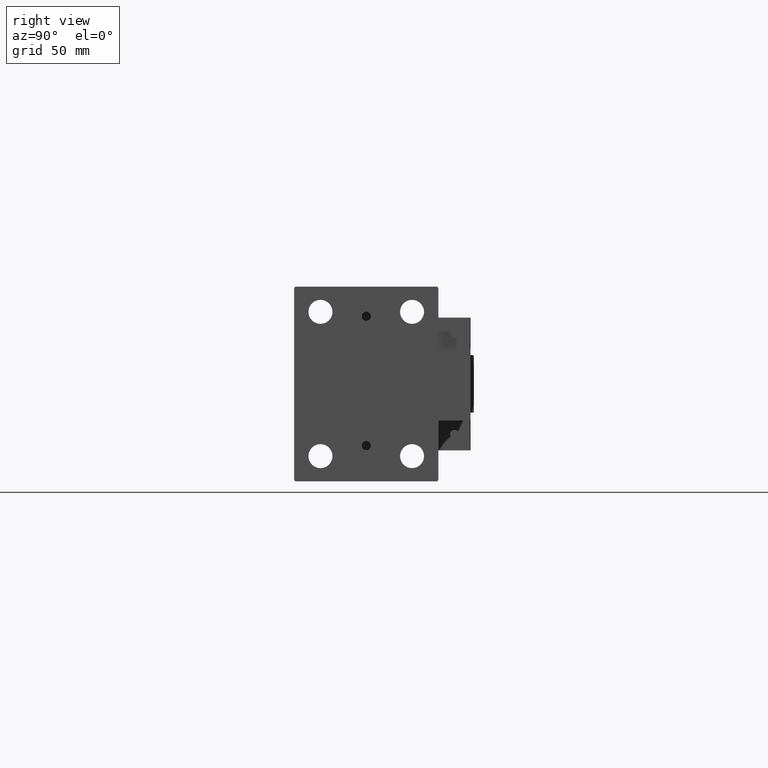
[diagram: clean part render]
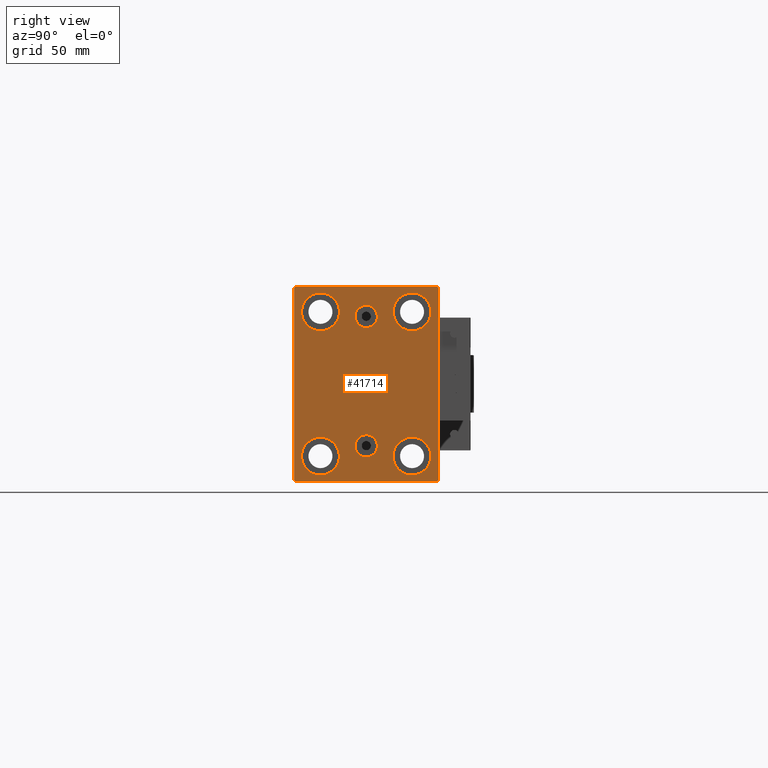
[diagram: same view with one face highlighted and labeled with its STEP entity id]
A machine part, right view. The second image highlights one B-rep face of the part: STEP entity #41714.
In plain terms, the highlighted planar face has unit normal (1, 0, 0).
Its self-contained STEP definition (entity closure, byte-faithful):
#232 = CARTESIAN_POINT ( 'NONE',  ( 223.0000000000000000, 36.74999999999957367, -36.75000000000059686 ) ) ;
#476 = LINE ( 'NONE', #232, #1808 ) ;
#743 = ORIENTED_EDGE ( 'NONE', *, *, #5233, .F. ) ;
#1162 = CIRCLE ( 'NONE', #20539, 8.249999999999992895 ) ;
#1653 = CARTESIAN_POINT ( 'NONE',  ( 223.0000000000000000, 3.901724702083465828E-15, -22.13999999999999346 ) ) ;
#1713 = FACE_BOUND ( 'NONE', #20015, .T. ) ;
#1808 = VECTOR ( 'NONE', #17312, 999.9999999999998863 ) ;
#2212 = ORIENTED_EDGE ( 'NONE', *, *, #11953, .T. ) ;
#2465 = FACE_BOUND ( 'NONE', #17411, .T. ) ;
#2668 = CARTESIAN_POINT ( 'NONE',  ( 223.0000000000000000, -19.99999999999999645, 23.25000000000000355 ) ) ;
#2839 = LINE ( 'NONE', #10436, #31914 ) ;
#2842 = DIRECTION ( 'NONE',  ( 0.000000000000000000, -1.000000000000000000, -2.202823461557850341E-16 ) ) ;
#2917 = VERTEX_POINT ( 'NONE', #33316 ) ;
#2923 = CARTESIAN_POINT ( 'NONE',  ( 223.0000000000000000, 36.75000000000044054, 36.74999999999941735 ) ) ;
#3643 = DIRECTION ( 'NONE',  ( 0.000000000000000000, 0.000000000000000000, -1.000000000000000000 ) ) ;
#3876 = DIRECTION ( 'NONE',  ( -1.000000000000000000, -0.000000000000000000, -0.000000000000000000 ) ) ;
#4588 = DIRECTION ( 'NONE',  ( 1.000000000000000000, 0.000000000000000000, -0.000000000000000000 ) ) ;
#4608 = AXIS2_PLACEMENT_3D ( 'NONE', #32016, #5200, #5443 ) ;
#4633 = CARTESIAN_POINT ( 'NONE',  ( 223.0000000000000000, 19.99999999999999645, -31.49999999999999289 ) ) ;
#4642 = VERTEX_POINT ( 'NONE', #38507 ) ;
#4744 = AXIS2_PLACEMENT_3D ( 'NONE', #25795, #25299, #41232 ) ;
#4845 = CARTESIAN_POINT ( 'NONE',  ( 223.0000000000000000, 3.306546357697852550E-15, -26.99999999999998934 ) ) ;
#5200 = DIRECTION ( 'NONE',  ( -1.000000000000000000, -0.000000000000000000, -0.000000000000000000 ) ) ;
#5233 = EDGE_CURVE ( 'NONE', #4642, #29684, #26586, .T. ) ;
#5443 = DIRECTION ( 'NONE',  ( 0.000000000000000000, 0.000000000000000000, 1.000000000000000000 ) ) ;
#6725 = ORIENTED_EDGE ( 'NONE', *, *, #36036, .F. ) ;
#6731 = EDGE_CURVE ( 'NONE', #24260, #36386, #34062, .T. ) ;
#7031 = ORIENTED_EDGE ( 'NONE', *, *, #30896, .F. ) ;
#7247 = ORIENTED_EDGE ( 'NONE', *, *, #30270, .T. ) ;
#7806 = CIRCLE ( 'NONE', #44981, 8.249999999999992895 ) ;
#8073 = VERTEX_POINT ( 'NONE', #13495 ) ;
#8643 = CARTESIAN_POINT ( 'NONE',  ( 223.0000000000000000, -31.50000000000000000, -42.50000000000000711 ) ) ;
#9147 = LINE ( 'NONE', #8643, #20893 ) ;
#10436 = CARTESIAN_POINT ( 'NONE',  ( 223.0000000000000000, -36.74999999999997868, 36.74999999999997868 ) ) ;
#10605 = DIRECTION ( 'NONE',  ( 0.000000000000000000, -1.632680918566406300E-16, 1.000000000000000000 ) ) ;
#10982 = DIRECTION ( 'NONE',  ( -1.000000000000000000, -0.000000000000000000, -0.000000000000000000 ) ) ;
#10986 = VECTOR ( 'NONE', #2842, 1000.000000000000000 ) ;
#11243 = ORIENTED_EDGE ( 'NONE', *, *, #41357, .F. ) ;
#11953 = EDGE_CURVE ( 'NONE', #31855, #35070, #17870, .T. ) ;
#12266 = CARTESIAN_POINT ( 'NONE',  ( 223.0000000000000000, -31.00000000000000000, -42.50000000000000711 ) ) ;
#12424 = CARTESIAN_POINT ( 'NONE',  ( 223.0000000000000000, 19.99999999999999645, -23.24999999999999289 ) ) ;
#13495 = CARTESIAN_POINT ( 'NONE',  ( 223.0000000000000000, -30.99999999999997158, 42.49999999999999289 ) ) ;
#14487 = CARTESIAN_POINT ( 'NONE',  ( 223.0000000000000000, 19.99999999999999645, -39.74999999999999289 ) ) ;
#14598 = DIRECTION ( 'NONE',  ( -1.000000000000000000, -0.000000000000000000, -0.000000000000000000 ) ) ;
#14687 = CARTESIAN_POINT ( 'NONE',  ( 223.0000000000000000, 20.00000000000000355, 39.74999999999999289 ) ) ;
#14832 = ORIENTED_EDGE ( 'NONE', *, *, #25595, .T. ) ;
#16372 = CARTESIAN_POINT ( 'NONE',  ( 223.0000000000000000, -3.571693674697836683E-15, 24.64000000000001123 ) ) ;
#16485 = EDGE_CURVE ( 'NONE', #25495, #24260, #44770, .T. ) ;
#16565 = CARTESIAN_POINT ( 'NONE',  ( 223.0000000000000000, 3.306546357697852550E-15, -26.99999999999998934 ) ) ;
#16597 = LINE ( 'NONE', #21378, #44909 ) ;
#16698 = VERTEX_POINT ( 'NONE', #12266 ) ;
#16820 = VERTEX_POINT ( 'NONE', #43116 ) ;
#16901 = CARTESIAN_POINT ( 'NONE',  ( 223.0000000000000000, -3.571693674697836683E-15, 29.50000000000001066 ) ) ;
#17223 = VECTOR ( 'NONE', #10605, 1000.000000000000000 ) ;
#17312 = DIRECTION ( 'NONE',  ( -0.000000000000000000, 0.7071067811865574537, 0.7071067811865376918 ) ) ;
#17411 = EDGE_LOOP ( 'NONE', ( #6725, #743 ) ) ;
#17625 = CARTESIAN_POINT ( 'NONE',  ( 223.0000000000000000, -19.99999999999999645, 31.50000000000000000 ) ) ;
#17870 = CIRCLE ( 'NONE', #46206, 8.249999999999992895 ) ;
#17887 = FACE_BOUND ( 'NONE', #26628, .T. ) ;
#18348 = DIRECTION ( 'NONE',  ( -0.000000000000000000, -0.7071067811865376918, 0.7071067811865574537 ) ) ;
#18365 = ORIENTED_EDGE ( 'NONE', *, *, #19720, .T. ) ;
#18921 = EDGE_LOOP ( 'NONE', ( #2212, #14832 ) ) ;
#19246 = DIRECTION ( 'NONE',  ( 0.000000000000000000, -0.7071067811865474617, -0.7071067811865474617 ) ) ;
#19453 = ORIENTED_EDGE ( 'NONE', *, *, #22255, .T. ) ;
#19611 = CARTESIAN_POINT ( 'NONE',  ( 223.0000000000000000, 31.50000000000001421, -42.00000000000000711 ) ) ;
#19720 = EDGE_CURVE ( 'NONE', #44414, #16820, #1162, .T. ) ;
#19781 = EDGE_CURVE ( 'NONE', #29604, #25799, #42122, .T. ) ;
#19990 = AXIS2_PLACEMENT_3D ( 'NONE', #4633, #3876, #23614 ) ;
#20015 = EDGE_LOOP ( 'NONE', ( #7247, #26074 ) ) ;
#20316 = EDGE_CURVE ( 'NONE', #45720, #43108, #43219, .T. ) ;
#20539 = AXIS2_PLACEMENT_3D ( 'NONE', #22628, #10982, #49728 ) ;
#20543 = EDGE_LOOP ( 'NONE', ( #22254, #24724 ) ) ;
#20602 = DIRECTION ( 'NONE',  ( 1.000000000000000000, 0.000000000000000000, -0.000000000000000000 ) ) ;
#20606 = VERTEX_POINT ( 'NONE', #44102 ) ;
#20657 = DIRECTION ( 'NONE',  ( -1.000000000000000000, -0.000000000000000000, -0.000000000000000000 ) ) ;
#20698 = EDGE_CURVE ( 'NONE', #8073, #29604, #2839, .T. ) ;
#20893 = VECTOR ( 'NONE', #39030, 1000.000000000000000 ) ;
#20931 = FACE_OUTER_BOUND ( 'NONE', #46888, .T. ) ;
#21109 = ORIENTED_EDGE ( 'NONE', *, *, #20698, .T. ) ;
#21179 = CIRCLE ( 'NONE', #48686, 8.250000000000000000 ) ;
#21351 = CARTESIAN_POINT ( 'NONE',  ( 223.0000000000000000, -31.50000000000000000, -41.99999999999999289 ) ) ;
#21378 = CARTESIAN_POINT ( 'NONE',  ( 223.0000000000000000, -36.75000000000044054, -36.74999999999941735 ) ) ;
#21469 = ORIENTED_EDGE ( 'NONE', *, *, #24838, .T. ) ;
#21925 = ORIENTED_EDGE ( 'NONE', *, *, #42618, .T. ) ;
#21948 = CARTESIAN_POINT ( 'NONE',  ( 223.0000000000000000, 0.000000000000000000, 0.000000000000000000 ) ) ;
#22254 = ORIENTED_EDGE ( 'NONE', *, *, #49388, .T. ) ;
#22255 = EDGE_CURVE ( 'NONE', #25799, #16698, #16597, .T. ) ;
#22361 = CIRCLE ( 'NONE', #4608, 8.249999999999992895 ) ;
#22628 = CARTESIAN_POINT ( 'NONE',  ( 223.0000000000000000, 20.00000000000000355, 31.50000000000000000 ) ) ;
#23614 = DIRECTION ( 'NONE',  ( 0.000000000000000000, 0.000000000000000000, 1.000000000000000000 ) ) ;
#24057 = CIRCLE ( 'NONE', #19990, 8.250000000000000000 ) ;
#24189 = EDGE_CURVE ( 'NONE', #36386, #8073, #37001, .T. ) ;
#24260 = VERTEX_POINT ( 'NONE', #33459 ) ;
#24724 = ORIENTED_EDGE ( 'NONE', *, *, #20316, .T. ) ;
#24838 = EDGE_CURVE ( 'NONE', #16820, #44414, #7806, .T. ) ;
#25299 = DIRECTION ( 'NONE',  ( -1.000000000000000000, -0.000000000000000000, -0.000000000000000000 ) ) ;
#25495 = VERTEX_POINT ( 'NONE', #19611 ) ;
#25500 = PLANE ( 'NONE',  #32481 ) ;
#25595 = EDGE_CURVE ( 'NONE', #35070, #31855, #22361, .T. ) ;
#25795 = CARTESIAN_POINT ( 'NONE',  ( 223.0000000000000000, -20.00000000000000355, -31.49999999999999289 ) ) ;
#25799 = VERTEX_POINT ( 'NONE', #21351 ) ;
#26074 = ORIENTED_EDGE ( 'NONE', *, *, #42214, .T. ) ;
#26586 = CIRCLE ( 'NONE', #38667, 4.859999999999999432 ) ;
#26628 = EDGE_LOOP ( 'NONE', ( #21469, #18365 ) ) ;
#27156 = VECTOR ( 'NONE', #3643, 1000.000000000000000 ) ;
#27179 = DIRECTION ( 'NONE',  ( 0.000000000000000000, 0.000000000000000000, 1.000000000000000000 ) ) ;
#27477 = CIRCLE ( 'NONE', #39570, 4.859999999999999432 ) ;
#28058 = ORIENTED_EDGE ( 'NONE', *, *, #19781, .T. ) ;
#28208 = DIRECTION ( 'NONE',  ( 0.000000000000000000, 0.000000000000000000, -1.000000000000000000 ) ) ;
#28523 = CARTESIAN_POINT ( 'NONE',  ( 223.0000000000000000, -20.00000000000000355, -31.49999999999999289 ) ) ;
#29224 = AXIS2_PLACEMENT_3D ( 'NONE', #4845, #4588, #43805 ) ;
#29262 = CIRCLE ( 'NONE', #29224, 4.859999999999995879 ) ;
#29604 = VERTEX_POINT ( 'NONE', #34123 ) ;
#29684 = VERTEX_POINT ( 'NONE', #16372 ) ;
#29797 = FACE_BOUND ( 'NONE', #18921, .T. ) ;
#29836 = VERTEX_POINT ( 'NONE', #32799 ) ;
#30270 = EDGE_CURVE ( 'NONE', #48258, #29836, #45174, .T. ) ;
#30331 = CARTESIAN_POINT ( 'NONE',  ( 223.0000000000000000, 31.00000000000000000, 42.50000000000000711 ) ) ;
#30468 = CARTESIAN_POINT ( 'NONE',  ( 223.0000000000000000, 19.99999999999999645, -31.49999999999999289 ) ) ;
#30656 = VECTOR ( 'NONE', #18348, 999.9999999999998863 ) ;
#30667 = EDGE_LOOP ( 'NONE', ( #7031, #11243 ) ) ;
#30896 = EDGE_CURVE ( 'NONE', #20606, #42756, #36273, .T. ) ;
#31012 = CARTESIAN_POINT ( 'NONE',  ( 223.0000000000000000, -3.571693674697836683E-15, 29.50000000000001066 ) ) ;
#31855 = VERTEX_POINT ( 'NONE', #2668 ) ;
#31914 = VECTOR ( 'NONE', #19246, 1000.000000000000114 ) ;
#32016 = CARTESIAN_POINT ( 'NONE',  ( 223.0000000000000000, -19.99999999999999645, 31.50000000000000000 ) ) ;
#32481 = AXIS2_PLACEMENT_3D ( 'NONE', #21948, #45244, #36628 ) ;
#32690 = AXIS2_PLACEMENT_3D ( 'NONE', #30468, #38315, #27179 ) ;
#32799 = CARTESIAN_POINT ( 'NONE',  ( 223.0000000000000000, -20.00000000000000355, -23.24999999999999289 ) ) ;
#32831 = DIRECTION ( 'NONE',  ( 0.000000000000000000, 0.000000000000000000, 1.000000000000000000 ) ) ;
#33087 = DIRECTION ( 'NONE',  ( 0.000000000000000000, 0.000000000000000000, -1.000000000000000000 ) ) ;
#33316 = CARTESIAN_POINT ( 'NONE',  ( 223.0000000000000000, 31.00000000000000000, -42.50000000000000711 ) ) ;
#33459 = CARTESIAN_POINT ( 'NONE',  ( 223.0000000000000000, 31.50000000000000000, 41.99999999999999289 ) ) ;
#34062 = LINE ( 'NONE', #2923, #30656 ) ;
#34123 = CARTESIAN_POINT ( 'NONE',  ( 223.0000000000000000, -31.50000000000000000, 41.99999999999996447 ) ) ;
#34268 = EDGE_CURVE ( 'NONE', #16698, #2917, #9147, .T. ) ;
#35070 = VERTEX_POINT ( 'NONE', #37533 ) ;
#36036 = EDGE_CURVE ( 'NONE', #29684, #4642, #27477, .T. ) ;
#36273 = CIRCLE ( 'NONE', #41961, 4.859999999999995879 ) ;
#36386 = VERTEX_POINT ( 'NONE', #30331 ) ;
#36628 = DIRECTION ( 'NONE',  ( 0.000000000000000000, 0.000000000000000000, -1.000000000000000000 ) ) ;
#36669 = CARTESIAN_POINT ( 'NONE',  ( 223.0000000000000000, 31.50000000000001421, -42.50000000000000711 ) ) ;
#36830 = DIRECTION ( 'NONE',  ( -0.000000000000000000, 0.7071067811865376918, -0.7071067811865574537 ) ) ;
#36880 = DIRECTION ( 'NONE',  ( 1.000000000000000000, 0.000000000000000000, 0.000000000000000000 ) ) ;
#37001 = LINE ( 'NONE', #41058, #10986 ) ;
#37533 = CARTESIAN_POINT ( 'NONE',  ( 223.0000000000000000, -19.99999999999999645, 39.74999999999999289 ) ) ;
#38315 = DIRECTION ( 'NONE',  ( -1.000000000000000000, -0.000000000000000000, -0.000000000000000000 ) ) ;
#38436 = ORIENTED_EDGE ( 'NONE', *, *, #6731, .T. ) ;
#38507 = CARTESIAN_POINT ( 'NONE',  ( 223.0000000000000000, -2.976515330312223011E-15, 34.36000000000000654 ) ) ;
#38667 = AXIS2_PLACEMENT_3D ( 'NONE', #16901, #36880, #33087 ) ;
#39030 = DIRECTION ( 'NONE',  ( 0.000000000000000000, 1.000000000000000000, 0.000000000000000000 ) ) ;
#39570 = AXIS2_PLACEMENT_3D ( 'NONE', #31012, #46457, #28208 ) ;
#39672 = DIRECTION ( 'NONE',  ( 0.000000000000000000, 0.000000000000000000, 1.000000000000000000 ) ) ;
#39944 = DIRECTION ( 'NONE',  ( -1.000000000000000000, -0.000000000000000000, -0.000000000000000000 ) ) ;
#40926 = ORIENTED_EDGE ( 'NONE', *, *, #24189, .T. ) ;
#41058 = CARTESIAN_POINT ( 'NONE',  ( 223.0000000000000000, 31.50000000000000000, 42.50000000000000711 ) ) ;
#41133 = ORIENTED_EDGE ( 'NONE', *, *, #34268, .T. ) ;
#41189 = FACE_BOUND ( 'NONE', #20543, .T. ) ;
#41232 = DIRECTION ( 'NONE',  ( 0.000000000000000000, 0.000000000000000000, 1.000000000000000000 ) ) ;
#41357 = EDGE_CURVE ( 'NONE', #42756, #20606, #29262, .T. ) ;
#41714 = ADVANCED_FACE ( 'NONE', ( #2465, #44226, #41189, #29797, #17887, #1713, #20931 ), #25500, .T. ) ;
#41961 = AXIS2_PLACEMENT_3D ( 'NONE', #16565, #20602, #43911 ) ;
#42122 = LINE ( 'NONE', #45435, #27156 ) ;
#42214 = EDGE_CURVE ( 'NONE', #29836, #48258, #21179, .T. ) ;
#42618 = EDGE_CURVE ( 'NONE', #2917, #25495, #476, .T. ) ;
#42756 = VERTEX_POINT ( 'NONE', #1653 ) ;
#43108 = VERTEX_POINT ( 'NONE', #14487 ) ;
#43116 = CARTESIAN_POINT ( 'NONE',  ( 223.0000000000000000, 20.00000000000000355, 23.25000000000000355 ) ) ;
#43219 = CIRCLE ( 'NONE', #32690, 8.250000000000000000 ) ;
#43805 = DIRECTION ( 'NONE',  ( 0.000000000000000000, 0.000000000000000000, 1.000000000000000000 ) ) ;
#43911 = DIRECTION ( 'NONE',  ( 0.000000000000000000, 0.000000000000000000, 1.000000000000000000 ) ) ;
#44102 = CARTESIAN_POINT ( 'NONE',  ( 223.0000000000000000, 3.306546357697852550E-15, -31.85999999999998522 ) ) ;
#44226 = FACE_BOUND ( 'NONE', #30667, .T. ) ;
#44414 = VERTEX_POINT ( 'NONE', #14687 ) ;
#44493 = CARTESIAN_POINT ( 'NONE',  ( 223.0000000000000000, 20.00000000000000355, 31.50000000000000000 ) ) ;
#44770 = LINE ( 'NONE', #36669, #17223 ) ;
#44909 = VECTOR ( 'NONE', #36830, 999.9999999999998863 ) ;
#44981 = AXIS2_PLACEMENT_3D ( 'NONE', #44493, #39944, #32831 ) ;
#45174 = CIRCLE ( 'NONE', #4744, 8.250000000000000000 ) ;
#45244 = DIRECTION ( 'NONE',  ( 1.000000000000000000, 0.000000000000000000, 0.000000000000000000 ) ) ;
#45435 = CARTESIAN_POINT ( 'NONE',  ( 223.0000000000000000, -31.50000000000000000, 42.49999999999999289 ) ) ;
#45720 = VERTEX_POINT ( 'NONE', #12424 ) ;
#46206 = AXIS2_PLACEMENT_3D ( 'NONE', #17625, #14598, #49547 ) ;
#46457 = DIRECTION ( 'NONE',  ( 1.000000000000000000, 0.000000000000000000, 0.000000000000000000 ) ) ;
#46473 = ORIENTED_EDGE ( 'NONE', *, *, #16485, .T. ) ;
#46888 = EDGE_LOOP ( 'NONE', ( #40926, #21109, #28058, #19453, #41133, #21925, #46473, #38436 ) ) ;
#48258 = VERTEX_POINT ( 'NONE', #49465 ) ;
#48686 = AXIS2_PLACEMENT_3D ( 'NONE', #28523, #20657, #39672 ) ;
#49388 = EDGE_CURVE ( 'NONE', #43108, #45720, #24057, .T. ) ;
#49465 = CARTESIAN_POINT ( 'NONE',  ( 223.0000000000000000, -20.00000000000000355, -39.74999999999999289 ) ) ;
#49547 = DIRECTION ( 'NONE',  ( 0.000000000000000000, 0.000000000000000000, 1.000000000000000000 ) ) ;
#49728 = DIRECTION ( 'NONE',  ( 0.000000000000000000, 0.000000000000000000, 1.000000000000000000 ) ) ;